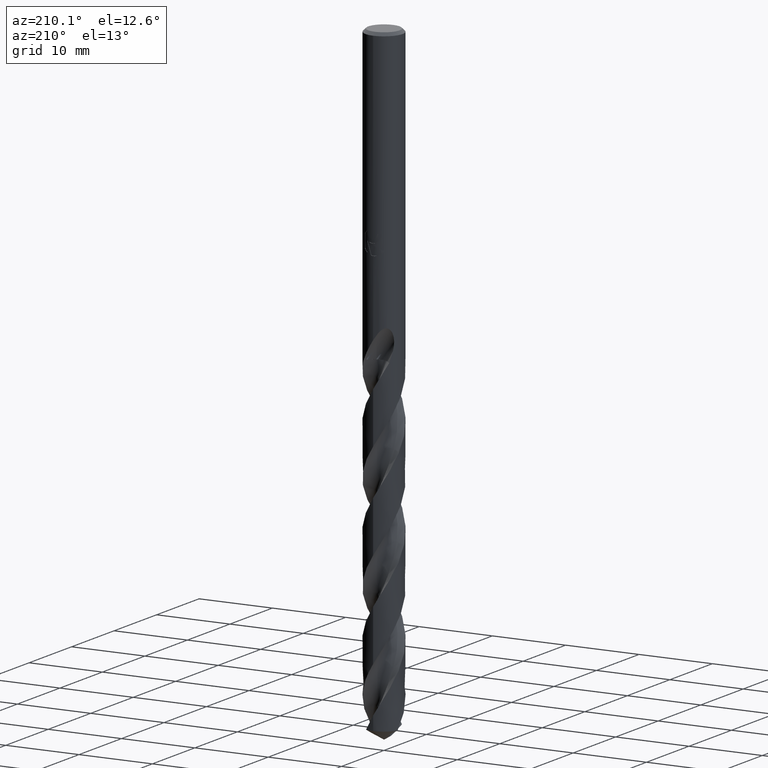
[diagram: clean part render]
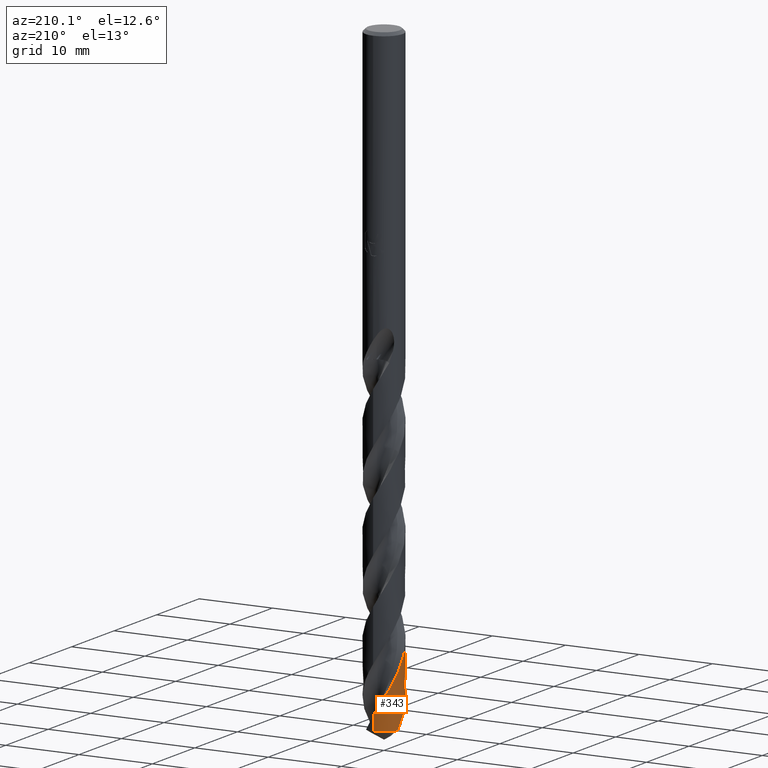
[diagram: same view with one face highlighted and labeled with its STEP entity id]
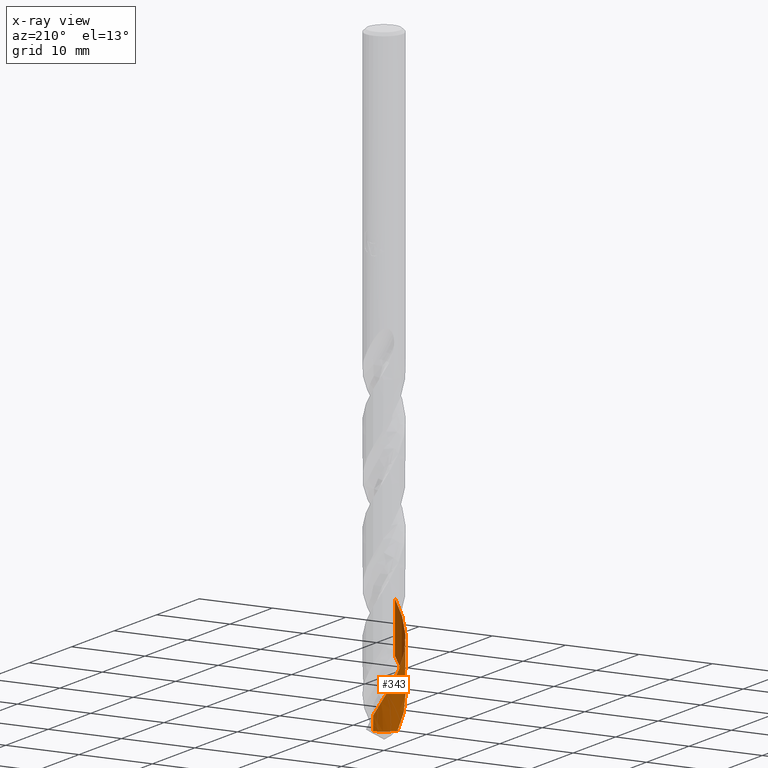
[diagram: x-ray of the same camera — body ghosted, the highlighted face saturated]
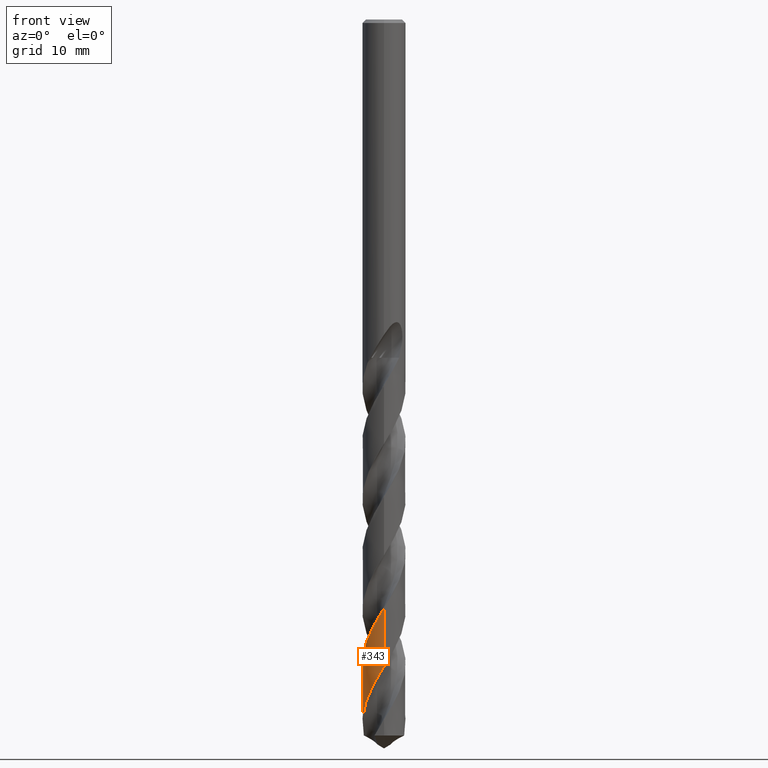
[diagram: same view with one face highlighted and labeled with its STEP entity id]
A machine part, auxiliary view. The second image highlights one B-rep face of the part: STEP entity #343.
The next image is the same camera in x-ray: the body ghosted, the highlighted face saturated — about 0% of this face is hidden behind the body in this view.
A second angle (front view) of the same face is appended — the face is thin or edge-on in the first view.
In plain terms, the highlighted conical surface has half-angle 0 deg.
Its self-contained STEP definition (entity closure, byte-faithful):
#315=EDGE_CURVE('',#707,#461,#820,.T.);
#343=ADVANCED_FACE('',(#849),#850,.T.);
#379=VERTEX_POINT('',#889);
#451=VERTEX_POINT('',#967);
#461=VERTEX_POINT('',#978);
#671=EDGE_CURVE('',#379,#731,#1205,.T.);
#687=EDGE_CURVE('',#451,#731,#1222,.T.);
#707=VERTEX_POINT('',#1244);
#723=EDGE_CURVE('',#461,#451,#1261,.T.);
#731=VERTEX_POINT('',#1271);
#741=EDGE_CURVE('',#379,#707,#1282,.T.);
#820=LINE('',#1700,#1701);
#849=FACE_OUTER_BOUND('',#1744,.T.);
#850=CONICAL_SURFACE('',#1745,2.54995,2.24377213673275E-006);
#889=CARTESIAN_POINT('',(-2.37960457100722,0.916505365855298,-84.4678054214797));
#967=CARTESIAN_POINT('',(-1.32567904475068E-014,2.54999575088543,-82.5740683088694));
#978=CARTESIAN_POINT('',(-1.49501950182934E-013,-2.54996624901896,-69.4257338613222));
#1205=CIRCLE('',#6736,2.55);
#1222=LINE('',#6771,#6772);
#1244=CARTESIAN_POINT('',(-1.56090524611372E-014,-2.54998179692435,-76.3550940838159));
#1261=B_SPLINE_CURVE_WITH_KNOTS('',3,(#7070,#7071,#7072,#7073,#7074,#7075,#7076,#7077,#7078,#7079,#7080,#7081,#7082,#7083,#7084,#7085,#7086,#7087,#7088,#7089,#7090,#7091,#7092,#7093,#7094,#7095,#7096,#7097,#7098,#7099,#7100,#7101,#7102,#7103,#7104,#7105,#7106,#7107,#7108,#7109,#7110,#7111,#7112,#7113,#7114,#7115,#7116,#7117,#7118,#7119,#7120,#7121,#7122,#7123,#7124,#7125,#7126,#7127,#7128,#7129,#7130,#7131,#7132,#7133,#7134,#7135,#7136,#7137,#7138,#7139,#7140,#7141,#7142,#7143,#7144,#7145,#7146,#7147,#7148,#7149,#7150,#7151,#7152,#7153,#7154,#7155,#7156,#7157,#7158,#7159,#7160,#7161,#7162,#7163,#7164,#7165,#7166,#7167,#7168,#7169,#7170,#7171,#7172,#7173,#7174,#7175,#7176,#7177,#7178,#7179,#7180,#7181,#7182,#7183,#7184,#7185,#7186,#7187,#7188,#7189,#7190,#7191,#7192,#7193,#7194,#7195,#7196,#7197,#7198,#7199,#7200,#7201,#7202,#7203,#7204,#7205,#7206,#7207,#7208,#7209,#7210,#7211,#7212,#7213,#7214,#7215,#7216,#7217,#7218,#7219,#7220,#7221,#7222,#7223,#7224,#7225,#7226,#7227,#7228,#7229,#7230,#7231,#7232,#7233,#7234,#7235,#7236,#7237,#7238,#7239),.UNSPECIFIED.,.F.,.F.,(4,2,2,2,2,2,2,2,2,2,2,2,2,2,2,2,2,2,2,2,2,2,2,2,2,2,2,2,2,2,2,2,2,2,2,2,2,2,2,2,2,2,2,2,2,2,2,2,2,2,2,2,2,2,2,2,2,2,2,2,2,2,2,2,2,2,2,2,2,2,2,2,2,2,2,2,2,2,2,2,2,2,2,2,4),(0.0,0.128900386987991,0.20967630578428,0.21992732343654,0.225768006113168,0.229305343989973,0.232364382032926,0.235037509973378,0.237393930060506,0.23948666682708,0.241357144120268,0.243038265610635,0.244556551112074,0.24593365226177,0.55374256996841,0.626201742849981,0.665840082232811,0.699099030225152,0.738496657827333,0.809884669127655,0.907788866245518,1.30256750466292,1.5553789310035,2.05098083731949,3.17018946927227,3.59520624601813,4.31916844540841,4.76597512397341,5.22559849243765,6.26727372694155,6.79048813979379,7.60910388949107,8.05470271713165,8.4762940207203,9.28669186697341,10.1727930656431,11.1611207464011,11.7231641681907,12.5636114616016,13.4501376446234,14.4213351820801,15.012439303883,15.8582062431566,16.7436318268271,17.7358221114925,18.2914743261619,19.1325465782396,20.0185723876188,20.9918102270958,21.5782730145203,22.4226633553582,23.3079251257136,24.2966955463813,24.8570078079192,25.6981892475908,26.5837998494538,27.5579945472971,28.1418159260104,28.9851457038656,29.8701855432672,30.8565232751138,31.4199732273003,32.2612077203801,33.1464124590319,34.1214476151114,34.7028619568227,35.5451872866778,36.4299945801775,37.4140671746624,37.9804240688221,38.821743259496,39.7065363885444,40.6824482913885,41.2614031455625,42.1029693010854,42.9875044277536,43.9689560100084,44.5384162118449,45.3816103298591,46.7217519657156,47.2280881200376,48.1052442620439,48.7713250494004,49.7752610207697,50.781615214081),.UNSPECIFIED.);
#1271=CARTESIAN_POINT('',(-3.12318034209098E-016,2.55,-84.4678054214797));
#1282=B_SPLINE_CURVE_WITH_KNOTS('',3,(#7717,#7718,#7719,#7720,#7721,#7722,#7723,#7724,#7725,#7726,#7727,#7728,#7729,#7730,#7731,#7732,#7733,#7734,#7735,#7736,#7737,#7738,#7739,#7740,#7741,#7742,#7743,#7744,#7745,#7746,#7747,#7748,#7749,#7750,#7751,#7752,#7753,#7754,#7755,#7756,#7757,#7758,#7759,#7760,#7761,#7762,#7763,#7764,#7765,#7766,#7767,#7768,#7769,#7770,#7771,#7772,#7773,#7774,#7775,#7776,#7777,#7778,#7779,#7780,#7781,#7782,#7783,#7784,#7785,#7786,#7787,#7788,#7789,#7790,#7791,#7792,#7793,#7794,#7795,#7796,#7797,#7798,#7799,#7800,#7801,#7802,#7803,#7804,#7805,#7806,#7807,#7808,#7809,#7810,#7811,#7812,#7813,#7814,#7815,#7816,#7817,#7818,#7819,#7820,#7821,#7822,#7823,#7824,#7825,#7826,#7827,#7828,#7829,#7830,#7831,#7832,#7833,#7834,#7835,#7836,#7837,#7838,#7839,#7840,#7841,#7842,#7843,#7844,#7845,#7846,#7847,#7848,#7849,#7850,#7851,#7852,#7853,#7854,#7855,#7856,#7857,#7858,#7859,#7860,#7861,#7862,#7863,#7864,#7865,#7866,#7867,#7868,#7869,#7870),.UNSPECIFIED.,.F.,.F.,(4,2,2,2,2,2,2,2,2,2,2,2,2,2,2,2,2,2,2,2,2,2,2,2,2,2,2,2,2,2,2,2,2,2,2,2,2,2,2,2,2,2,2,2,2,2,2,2,2,2,2,2,2,2,2,2,2,2,2,2,2,2,2,2,2,2,2,2,2,2,2,2,2,2,2,2,4),(0.0,0.834292465944842,1.25638309487284,2.08308224637403,2.98959708697629,3.74320339907064,4.64751621470474,5.43584932689863,6.27133897344682,7.09779209696413,7.93268775801577,8.76105195926973,9.59546810837225,9.8041601179118,10.1510961975384,11.1943345420575,12.0315193773504,12.8638982285907,13.7028138083229,14.5063760344859,15.3481922144197,16.0854108378525,16.5086308607437,17.2598352899261,18.0984208898496,18.9281372987025,19.7660669944202,20.5979130643119,21.4354010171846,21.6449303699471,21.9951559618864,23.0425399437801,23.8830620141366,24.7192421259865,25.5613876160799,26.3643426386489,27.2096332987351,27.94299131864,28.3679119240969,29.1354709008296,30.0469393310525,30.8380671325093,31.7493634876285,32.5361900967937,33.3776949418624,34.2100043172022,35.0509182177223,35.885244464979,36.7256797707534,37.5279740041885,38.4365123583583,38.8355255295947,38.9015358468379,40.0315556175699,40.8692866902674,41.7029428956447,42.5423243778315,43.3551247916249,44.1970338753261,44.9456627028539,45.3690215271047,46.0870821011954,46.7600283357998,47.0918706311924,47.5779400939023,48.9320566513438,49.0549836528162,50.3038515094555,50.9659576269275,51.4480363671986,51.6185177840979,51.732999617318,51.8235530792434,51.9250962171518,52.0953235773108,52.5420988582347,53.1669952212378),.UNSPECIFIED.);
#1700=CARTESIAN_POINT('',(3.12225083208546E-016,-2.54995,-62.1839027107399));
#1701=VECTOR('',#7964,1.0);
#1744=EDGE_LOOP('',(#7995,#7996,#7997,#7998,#7999));
#1745=AXIS2_PLACEMENT_3D('',#8000,#8001,#8002);
#6736=AXIS2_PLACEMENT_3D('',#8364,#8365,#8366);
#6771=CARTESIAN_POINT('',(-3.12311911177328E-016,2.54995,-62.1839027107399));
#6772=VECTOR('',#8377,1.0);
#7070=CARTESIAN_POINT('',(1.7723765108616,-1.83321345482734,-39.905));
#7071=CARTESIAN_POINT('',(1.75710082477025,-1.84798231920161,-39.9423454092098));
#7072=CARTESIAN_POINT('',(1.74158352363118,-1.86261607827862,-39.9797468884476));
#7073=CARTESIAN_POINT('',(1.71587524961426,-1.88625150492224,-40.0405273374739));
#7074=CARTESIAN_POINT('',(1.70587498546255,-1.89530114080435,-40.0638915288743));
#7075=CARTESIAN_POINT('',(1.69445917747488,-1.90546667401068,-40.0902150378718));
#7076=CARTESIAN_POINT('',(1.69317173259655,-1.90661078211573,-40.0931788344007));
#7077=CARTESIAN_POINT('',(1.69114771744556,-1.90840578381165,-40.0978305104924));
#7078=CARTESIAN_POINT('',(1.69041246546757,-1.90905708533911,-40.0995186945893));
#7079=CARTESIAN_POINT('',(1.68923091373494,-1.91010250988461,-40.1022290248047));
#7080=CARTESIAN_POINT('',(1.6887850131223,-1.91049675990829,-40.1032512742087));
#7081=CARTESIAN_POINT('',(1.68795307707555,-1.91123181017049,-40.105157425428));
#7082=CARTESIAN_POINT('',(1.68756710106379,-1.91157262805347,-40.1060413402507));
#7083=CARTESIAN_POINT('',(1.6868435199964,-1.91221116203622,-40.1076975657484));
#7084=CARTESIAN_POINT('',(1.68650595679645,-1.9125088903901,-40.1084698853976));
#7085=CARTESIAN_POINT('',(1.68587057748733,-1.91306899131871,-40.1099229481956));
#7086=CARTESIAN_POINT('',(1.68557279142731,-1.91333137283057,-40.1106036981955));
#7087=CARTESIAN_POINT('',(1.68501034882254,-1.9138267119141,-40.1118889646419));
#7088=CARTESIAN_POINT('',(1.68474571438337,-1.91405967611236,-40.112493486309));
#7089=CARTESIAN_POINT('',(1.68424439840961,-1.91450081231912,-40.1136382803822));
#7090=CARTESIAN_POINT('',(1.68400773362968,-1.9147089891796,-40.1141785564258));
#7091=CARTESIAN_POINT('',(1.68355824019688,-1.91510422814854,-40.1152043772229));
#7092=CARTESIAN_POINT('',(1.68334542420753,-1.91529129408407,-40.1156899250974));
#7093=CARTESIAN_POINT('',(1.68294030673508,-1.91564727393433,-40.1166139598133));
#7094=CARTESIAN_POINT('',(1.68274801500311,-1.91581619087254,-40.1170524492422));
#7095=CARTESIAN_POINT('',(1.68238123149531,-1.91613829069509,-40.1178886285259));
#7096=CARTESIAN_POINT('',(1.6822067475621,-1.91629147578861,-40.1182863199993));
#7097=CARTESIAN_POINT('',(1.64302384458453,-1.95068193756656,-40.2075733928143));
#7098=CARTESIAN_POINT('',(1.60323516825499,-1.98355879728478,-40.2936515567331));
#7099=CARTESIAN_POINT('',(1.55086329341618,-2.02409931981489,-40.4016380699407));
#7100=CARTESIAN_POINT('',(1.54080156604488,-2.03176962800894,-40.4221640167649));
#7101=CARTESIAN_POINT('',(1.52508711383368,-2.04356402256988,-40.4539142188457));
#7102=CARTESIAN_POINT('',(1.51950629569761,-2.04771717809659,-40.4651311284246));
#7103=CARTESIAN_POINT('',(1.50919528875348,-2.05532490656488,-40.4857549433353));
#7104=CARTESIAN_POINT('',(1.50447477134548,-2.05878284358259,-40.4951585799632));
#7105=CARTESIAN_POINT('',(1.49412533668527,-2.06630943565964,-40.5156980250107));
#7106=CARTESIAN_POINT('',(1.48849218610247,-2.07037110656166,-40.5268279873114));
#7107=CARTESIAN_POINT('',(1.47258962472397,-2.08173869663693,-40.5581229148924));
#7108=CARTESIAN_POINT('',(1.46228099877857,-2.08899286646787,-40.5782635187398));
#7109=CARTESIAN_POINT('',(1.43768805664422,-2.10602723032716,-40.626044427475));
#7110=CARTESIAN_POINT('',(1.42354621187945,-2.1156154270374,-40.6533399559551));
#7111=CARTESIAN_POINT('',(1.34924007547565,-2.1648681366609,-40.7965060617508));
#7112=CARTESIAN_POINT('',(1.28845425677429,-2.20155624136726,-40.912116537915));
#7113=CARTESIAN_POINT('',(1.18714624660139,-2.25714924592668,-41.101432871003));
#7114=CARTESIAN_POINT('',(1.1470825072851,-2.27776863997138,-41.1754794640171));
#7115=CARTESIAN_POINT('',(1.02710383164237,-2.33556026661959,-41.394542852955));
#7116=CARTESIAN_POINT('',(0.945690544490126,-2.36969664358563,-41.5396827585189));
#7117=CARTESIAN_POINT('',(0.675173260912042,-2.46695205670559,-42.0123670263283));
#7118=CARTESIAN_POINT('',(0.480342664384172,-2.51218965766981,-42.3373527989048));
#7119=CARTESIAN_POINT('',(0.206745375604498,-2.5426403729319,-42.7889614087387));
#7120=CARTESIAN_POINT('',(0.131164185705668,-2.54765461173531,-42.9132838512705));
#7121=CARTESIAN_POINT('',(-0.0733091220064718,-2.55210911734911,-43.2494414490737));
#7122=CARTESIAN_POINT('',(-0.202234670452391,-2.5451461810504,-43.4610984189842));
#7123=CARTESIAN_POINT('',(-0.409069986782036,-2.51814087715566,-43.8035354633626));
#7124=CARTESIAN_POINT('',(-0.487512175021329,-2.50413972770517,-43.9341038960194));
#7125=CARTESIAN_POINT('',(-0.645122369429844,-2.46831388829449,-44.1991392286946));
#7126=CARTESIAN_POINT('',(-0.724088629476137,-2.44631259228666,-44.3333739090546));
#7127=CARTESIAN_POINT('',(-0.978058105126237,-2.36218285568149,-44.7725026376269));
#7128=CARTESIAN_POINT('',(-1.14741968690286,-2.28472470427998,-45.0764975542085));
#7129=CARTESIAN_POINT('',(-1.38698559637937,-2.14173451395826,-45.534180689148));
#7130=CARTESIAN_POINT('',(-1.46436919774451,-2.08958592446112,-45.6869920329816));
#7131=CARTESIAN_POINT('',(-1.65501111716848,-1.9453205761992,-46.0795644611539));
#7132=CARTESIAN_POINT('',(-1.76358047505499,-1.8474683663523,-46.3188496291803));
#7133=CARTESIAN_POINT('',(-1.91742631067032,-1.68281098131569,-46.6886815230815));
#7134=CARTESIAN_POINT('',(-1.96892298019276,-1.62225949427439,-46.8189273971239));
#7135=CARTESIAN_POINT('',(-2.06349576850226,-1.49990320125221,-47.0725701309381));
#7136=CARTESIAN_POINT('',(-2.10680076827669,-1.43843959327312,-47.1957753567404));
#7137=CARTESIAN_POINT('',(-2.22520289597479,-1.25355728389242,-47.5562472055907));
#7138=CARTESIAN_POINT('',(-2.29263342092995,-1.12551594428172,-47.7931314313333));
#7139=CARTESIAN_POINT('',(-2.41034893002535,-0.846911959928071,-48.2894689701446));
#7140=CARTESIAN_POINT('',(-2.4581611133315,-0.696035893364212,-48.547792494419));
#7141=CARTESIAN_POINT('',(-2.52912609052006,-0.369640701956398,-49.0963079494819));
#7142=CARTESIAN_POINT('',(-2.54862895731607,-0.19405382422193,-49.3849144637172));
#7143=CARTESIAN_POINT('',(-2.55055979165511,0.0824366011692428,-49.838487814748));
#7144=CARTESIAN_POINT('',(-2.54534925757027,0.182590240892756,-50.0026340563284));
#7145=CARTESIAN_POINT('',(-2.5176881783416,0.431043480695088,-50.4130613763836));
#7146=CARTESIAN_POINT('',(-2.48801947710586,0.578214091002894,-50.6587719462619));
#7147=CARTESIAN_POINT('',(-2.40083364087509,0.873559566201718,-51.1641223752606));
#7148=CARTESIAN_POINT('',(-2.3420890179144,1.02064124253193,-51.4226068470837));
#7149=CARTESIAN_POINT('',(-2.191290337283,1.31542366796864,-51.9663349472997));
#7150=CARTESIAN_POINT('',(-2.09693325210468,1.4611682891515,-52.2500329777676));
#7151=CARTESIAN_POINT('',(-1.92248445436933,1.67848355525385,-52.7071909297569));
#7152=CARTESIAN_POINT('',(-1.85146754250798,1.75650548276904,-52.8798335754548));
#7153=CARTESIAN_POINT('',(-1.66764007630604,1.93490434975335,-53.3004064969945));
#7154=CARTESIAN_POINT('',(-1.55030857457487,2.03013375367526,-53.5477129199103));
#7155=CARTESIAN_POINT('',(-1.29428141207961,2.20270857131665,-54.0543952527846));
#7156=CARTESIAN_POINT('',(-1.15545606251289,2.27859408548916,-54.3126183457998));
#7157=CARTESIAN_POINT('',(-0.848141798253879,2.41124494886801,-54.8622775049768));
#7158=CARTESIAN_POINT('',(-0.678823591365467,2.46428467657303,-55.1521142337289));
#7159=CARTESIAN_POINT('',(-0.408145494078217,2.51901068323785,-55.6051218895488));
#7160=CARTESIAN_POINT('',(-0.309946765083443,2.53296696910963,-55.7674701538276));
#7161=CARTESIAN_POINT('',(-0.0617455210719697,2.55359678177217,-56.1763685614532));
#7162=CARTESIAN_POINT('',(0.0885547861546258,2.55281170205884,-56.4223554536664));
#7163=CARTESIAN_POINT('',(0.395299524749975,2.52406501246893,-56.9279372326425));
#7164=CARTESIAN_POINT('',(0.550909138556124,2.49472361348539,-57.1863765248693));
#7165=CARTESIAN_POINT('',(0.869588758176528,2.40335675178405,-57.7307659209953));
#7166=CARTESIAN_POINT('',(1.03115441318774,2.33860608590747,-58.0151642743637));
#7167=CARTESIAN_POINT('',(1.27759837281731,2.20927513870773,-58.4717367438027));
#7168=CARTESIAN_POINT('',(1.36715104014753,2.15500404747794,-58.6430937392474));
#7169=CARTESIAN_POINT('',(1.57685161477215,2.00958380263537,-59.0620669406941));
#7170=CARTESIAN_POINT('',(1.69278632678414,1.91295158514183,-59.3090679565434));
#7171=CARTESIAN_POINT('',(1.91143277853596,1.69516673764488,-59.8154957257397));
#7172=CARTESIAN_POINT('',(2.01271058272752,1.57357622339737,-60.0737694394029));
#7173=CARTESIAN_POINT('',(2.20189747707507,1.29806366471162,-60.6225912937178));
#7174=CARTESIAN_POINT('',(2.28641045681245,1.14267321510647,-60.9115480528191));
#7175=CARTESIAN_POINT('',(2.39264197948695,0.887412603739937,-61.3650949234713));
#7176=CARTESIAN_POINT('',(2.42558904485392,0.792934762171267,-61.5288640560547));
#7177=CARTESIAN_POINT('',(2.49390524205833,0.552444616685261,-61.9393173859064));
#7178=CARTESIAN_POINT('',(2.52209691626573,0.404729726830931,-62.1854306780062));
#7179=CARTESIAN_POINT('',(2.55295901417828,0.0981239486589649,-62.691118077808));
#7180=CARTESIAN_POINT('',(2.55413066802431,-0.0602112166509425,-62.9495367096435));
#7181=CARTESIAN_POINT('',(2.52582156792957,-0.390746079832253,-63.4942952869755));
#7182=CARTESIAN_POINT('',(2.49332622881888,-0.561988665128127,-63.7790801689104));
#7183=CARTESIAN_POINT('',(2.41385284511387,-0.828519616039767,-64.2353353181151));
#7184=CARTESIAN_POINT('',(2.37798817624963,-0.926440922206008,-64.4059884235825));
#7185=CARTESIAN_POINT('',(2.27594856368678,-1.15972970206261,-64.8240390305586));
#7186=CARTESIAN_POINT('',(2.2035532172408,-1.29200973133359,-65.0708263170426));
#7187=CARTESIAN_POINT('',(2.03210652040535,-1.54847715449886,-65.577074583355));
#7188=CARTESIAN_POINT('',(1.93232564370472,-1.6713278042697,-65.8353823990883));
#7189=CARTESIAN_POINT('',(1.69872519490256,-1.90986698463835,-66.3836384707677));
#7190=CARTESIAN_POINT('',(1.56286515562779,-2.02256380117913,-66.6720006854644));
#7191=CARTESIAN_POINT('',(1.33276512232081,-2.17627204536872,-67.1259300379328));
#7192=CARTESIAN_POINT('',(1.24590366579165,-2.22713669099492,-67.2906771733598));
#7193=CARTESIAN_POINT('',(1.022484667274,-2.34080539732459,-67.7022240730222));
#7194=CARTESIAN_POINT('',(0.882901903107088,-2.39694591304948,-67.9484474733904));
#7195=CARTESIAN_POINT('',(0.587922422222987,-2.48628998791116,-68.4542268008863));
#7196=CARTESIAN_POINT('',(0.432786968886527,-2.51792908775027,-68.7126273758051));
#7197=CARTESIAN_POINT('',(0.102781489923633,-2.55382748191599,-69.2577239112845));
#7198=CARTESIAN_POINT('',(-0.0717336789523074,-2.55489789103964,-69.5428617765457));
#7199=CARTESIAN_POINT('',(-0.348404223745501,-2.52818707011038,-69.9988338604354));
#7200=CARTESIAN_POINT('',(-0.451013940276474,-2.5119100474102,-70.1688508155699));
#7201=CARTESIAN_POINT('',(-0.699101078427658,-2.4568683934483,-70.5860631592201));
#7202=CARTESIAN_POINT('',(-0.842743965650211,-2.41137889236187,-70.8326528309078));
#7203=CARTESIAN_POINT('',(-1.12737628057234,-2.29266949393512,-71.3387346465126));
#7204=CARTESIAN_POINT('',(-1.26718606554805,-2.21845236464384,-71.5970735158432));
#7205=CARTESIAN_POINT('',(-1.54604316533475,-2.03542569985639,-72.1448092622576));
#7206=CARTESIAN_POINT('',(-1.68259030573356,-1.92409702050047,-72.4326249808631));
#7207=CARTESIAN_POINT('',(-1.87803191737219,-1.72788818838572,-72.8869184519365));
#7208=CARTESIAN_POINT('',(-1.94507248823434,-1.65205487498738,-73.0525769836484));
#7209=CARTESIAN_POINT('',(-2.10004176659366,-1.4542205763154,-73.4651598658167));
#7210=CARTESIAN_POINT('',(-2.18205536571952,-1.32800152598949,-73.7115026237551));
#7211=CARTESIAN_POINT('',(-2.32655738839742,-1.05569110292116,-74.2173814223632));
#7212=CARTESIAN_POINT('',(-2.38747351097689,-0.909562496081145,-74.4757622240913));
#7213=CARTESIAN_POINT('',(-2.48631323781466,-0.592443640489736,-75.0212058536119));
#7214=CARTESIAN_POINT('',(-2.52099295837801,-0.421174401805146,-75.3067074478349));
#7215=CARTESIAN_POINT('',(-2.54797163506505,-0.144704050154475,-75.7623914100018));
#7216=CARTESIAN_POINT('',(-2.55174157588623,-0.0412795957495613,-75.9317563998873));
#7217=CARTESIAN_POINT('',(-2.54556879614618,0.21229003569986,-76.3481862409252));
#7218=CARTESIAN_POINT('',(-2.52863869139657,0.361931945849279,-76.5946495477841));
#7219=CARTESIAN_POINT('',(-2.46706603715244,0.664052645593305,-77.1006248671127));
#7220=CARTESIAN_POINT('',(-2.42120164170189,0.815563698485999,-77.3589835065114));
#7221=CARTESIAN_POINT('',(-2.29553376956565,1.12412535691327,-77.9060826595874));
#7222=CARTESIAN_POINT('',(-2.21285385772182,1.27924306793538,-78.1932477733082));
#7223=CARTESIAN_POINT('',(-2.058018404608,1.50908852606473,-78.6478586095714));
#7224=CARTESIAN_POINT('',(-1.99618543864209,1.58997558664126,-78.8144860706245));
#7225=CARTESIAN_POINT('',(-1.83126168777988,1.78089806487895,-79.2286879834486));
#7226=CARTESIAN_POINT('',(-1.72289589665293,1.88593949706354,-79.4756727488403));
#7227=CARTESIAN_POINT('',(-1.41988135987607,2.13159960151543,-80.1157996112106));
#7228=CARTESIAN_POINT('',(-1.21360266103721,2.25541759742755,-80.5066780098789));
#7229=CARTESIAN_POINT('',(-0.909870142343394,2.38385709998802,-81.048118936402));
#7230=CARTESIAN_POINT('',(-0.824740206005863,2.41463337203672,-81.1964606035031));
#7231=CARTESIAN_POINT('',(-0.588078208897489,2.48620282115151,-81.602040468758));
#7232=CARTESIAN_POINT('',(-0.434233219538231,2.51762616104461,-81.8585312533857));
#7233=CARTESIAN_POINT('',(-0.160330622686705,2.54772724995433,-82.3111085335573));
#7234=CARTESIAN_POINT('',(-0.0413054956834088,2.5524372230186,-82.5062355325549));
#7235=CARTESIAN_POINT('',(0.256951822951518,2.54335145986691,-82.9958721263017));
#7236=CARTESIAN_POINT('',(0.435144570879641,2.5189857335835,-83.2892732586982));
#7237=CARTESIAN_POINT('',(0.783804941906852,2.43319780684987,-83.8787582798587));
#7238=CARTESIAN_POINT('',(0.953377367060152,2.37190302474305,-84.1728062861796));
#7239=CARTESIAN_POINT('',(1.11514291587317,2.29324143455893,-84.4678054214797));
#7717=CARTESIAN_POINT('',(-2.37960457100721,0.916505365855326,-84.4678054214797));
#7718=CARTESIAN_POINT('',(-2.43140772930122,0.782002723927466,-84.2299742096978));
#7719=CARTESIAN_POINT('',(-2.47183770125194,0.643036830004052,-83.9935396582022));
#7720=CARTESIAN_POINT('',(-2.51469598197902,0.429145137344715,-83.6361484460515));
#7721=CARTESIAN_POINT('',(-2.5259817050302,0.356740750583911,-83.5162332125877));
#7722=CARTESIAN_POINT('',(-2.5501006698373,0.141515993260234,-83.1608521053776));
#7723=CARTESIAN_POINT('',(-2.5540309316053,-0.00205692232151544,-82.9247450101531));
#7724=CARTESIAN_POINT('',(-2.53688119347444,-0.302448904550888,-82.4315086105697));
#7725=CARTESIAN_POINT('',(-2.51339174523439,-0.458288774913505,-82.1750748044243));
#7726=CARTESIAN_POINT('',(-2.4444543313768,-0.737683249302206,-81.7024493879744));
#7727=CARTESIAN_POINT('',(-2.40345515582345,-0.861966740147555,-81.4869869732023));
#7728=CARTESIAN_POINT('',(-2.29253205779087,-1.1275662221684,-81.0148747157063));
#7729=CARTESIAN_POINT('',(-2.21879633333503,-1.26649602725128,-80.7589518463168));
#7730=CARTESIAN_POINT('',(-2.05784290303142,-1.51209729889275,-80.276900416659));
#7731=CARTESIAN_POINT('',(-1.97381013592102,-1.62026719904835,-80.0514575471168));
#7732=CARTESIAN_POINT('',(-1.78345714682891,-1.82832626748396,-79.5889528328439));
#7733=CARTESIAN_POINT('',(-1.67658059605544,-1.92679964484945,-79.35226179377));
#7734=CARTESIAN_POINT('',(-1.44851864011546,-2.10352444122569,-78.8789081187256));
#7735=CARTESIAN_POINT('',(-1.32798395087608,-2.18162426999548,-78.6425510293937));
#7736=CARTESIAN_POINT('',(-1.07353862040421,-2.3175327644418,-78.1693602946126));
#7737=CARTESIAN_POINT('',(-0.940088741676264,-2.374799246304,-77.9328451889191));
#7738=CARTESIAN_POINT('',(-0.66597794971576,-2.46568018290841,-77.4591727684117));
#7739=CARTESIAN_POINT('',(-0.526012127483749,-2.49928049015294,-77.2222919215253));
#7740=CARTESIAN_POINT('',(-0.240676910846621,-2.54272769478653,-76.7487533114561));
#7741=CARTESIAN_POINT('',(-0.0958858261827271,-2.55229341759889,-76.5124072629767));
#7742=CARTESIAN_POINT('',(0.085181396859728,-2.5488158973282,-76.2154144703489));
#7743=CARTESIAN_POINT('',(0.121359168147529,-2.54734870560309,-76.1559996891865));
#7744=CARTESIAN_POINT('',(0.217487262970241,-2.5414009686678,-75.9977076923159));
#7745=CARTESIAN_POINT('',(0.27726217032373,-2.53557271251221,-75.8986655803681));
#7746=CARTESIAN_POINT('',(0.515621363088516,-2.50381622770579,-75.5029378670362));
#7747=CARTESIAN_POINT('',(0.691672874040639,-2.46104112489925,-75.2084787341903));
#7748=CARTESIAN_POINT('',(0.998623159878529,-2.35079226017254,-74.6739546187143));
#7749=CARTESIAN_POINT('',(1.13065644091388,-2.29019606054188,-74.4350402399122));
#7750=CARTESIAN_POINT('',(1.38209705192153,-2.1477765044364,-73.9604567811317));
#7751=CARTESIAN_POINT('',(1.50129548782478,-2.06623003745097,-73.7251372300476));
#7752=CARTESIAN_POINT('',(1.72566751817567,-1.88297348424465,-73.2504129231432));
#7753=CARTESIAN_POINT('',(1.83006780191734,-1.78164683667631,-73.0112169790903));
#7754=CARTESIAN_POINT('',(2.01631218647489,-1.56721316076201,-72.5446894225056));
#7755=CARTESIAN_POINT('',(2.0987775760666,-1.45494711850899,-72.3176101057429));
#7756=CARTESIAN_POINT('',(2.24815695326865,-1.2121931624358,-71.8506532722398));
#7757=CARTESIAN_POINT('',(2.31368410013761,-1.08182608905234,-71.6109383305294));
#7758=CARTESIAN_POINT('',(2.41492591955813,-0.828664616267962,-71.1628698565706));
#7759=CARTESIAN_POINT('',(2.45333121262421,-0.706961455960928,-70.9545858868452));
#7760=CARTESIAN_POINT('',(2.49923229440662,-0.511415573419711,-70.6256454358715));
#7761=CARTESIAN_POINT('',(2.51287445614939,-0.439484114366885,-70.5058057983783));
#7762=CARTESIAN_POINT('',(2.5420812947641,-0.238737994736536,-70.1726443562664));
#7763=CARTESIAN_POINT('',(2.5509476894442,-0.10904057424236,-69.9586509246686));
#7764=CARTESIAN_POINT('',(2.54869061098896,0.16599047372028,-69.5075449061604));
#7765=CARTESIAN_POINT('',(2.53512247179186,0.310668472972726,-69.2708745191968));
#7766=CARTESIAN_POINT('',(2.48381939282525,0.594604124190368,-68.7975044775891));
#7767=CARTESIAN_POINT('',(2.44646324405261,0.733301865991905,-68.5611078298597));
#7768=CARTESIAN_POINT('',(2.34824859482005,1.00451327937153,-68.0879181877828));
#7769=CARTESIAN_POINT('',(2.2873745265934,1.13632458842256,-67.851441386389));
#7770=CARTESIAN_POINT('',(2.14440677427387,1.3872728819459,-67.3777209105618));
#7771=CARTESIAN_POINT('',(2.06281147777249,1.50592152240997,-67.1407483207216));
#7772=CARTESIAN_POINT('',(1.87975481230764,1.72910058829003,-66.6671506928877));
#7773=CARTESIAN_POINT('',(1.77854015394973,1.83304944650632,-66.4308368260499));
#7774=CARTESIAN_POINT('',(1.64162879339761,1.95157844789702,-66.1338702270808));
#7775=CARTESIAN_POINT('',(1.61374919635388,1.97469294555985,-66.0744451804682));
#7776=CARTESIAN_POINT('',(1.53804161687167,2.03479073978769,-65.9155877767699));
#7777=CARTESIAN_POINT('',(1.48942827765005,2.070635558397,-65.8159873201449));
#7778=CARTESIAN_POINT('',(1.2906604606007,2.20659178479918,-65.4196791897389));
#7779=CARTESIAN_POINT('',(1.13113082872816,2.29250288526995,-65.1251902909232));
#7780=CARTESIAN_POINT('',(0.82912996617792,2.41576191531661,-64.590614175186));
#7781=CARTESIAN_POINT('',(0.690415598664046,2.45898292040933,-64.351678075224));
#7782=CARTESIAN_POINT('',(0.408107184088606,2.5212095080214,-63.8769081495134));
#7783=CARTESIAN_POINT('',(0.26484870072122,2.5402681515288,-63.6414298274436));
#7784=CARTESIAN_POINT('',(-0.0246158798415365,2.55397616030313,-63.1665500461043));
#7785=CARTESIAN_POINT('',(-0.169988120937066,2.54841104764658,-62.9273578152456));
#7786=CARTESIAN_POINT('',(-0.451194360612676,2.51352349157777,-62.4618922693144));
#7787=CARTESIAN_POINT('',(-0.58694941711357,2.48534389283204,-62.2358527923237));
#7788=CARTESIAN_POINT('',(-0.859801156512636,2.40504851177881,-61.7698964071088));
#7789=CARTESIAN_POINT('',(-0.995757855037458,2.35198628326064,-61.5301376681953));
#7790=CARTESIAN_POINT('',(-1.23935325148625,2.23207183431493,-61.0839230844657));
#7791=CARTESIAN_POINT('',(-1.34835813191638,2.16798253132364,-60.8775215690524));
#7792=CARTESIAN_POINT('',(-1.51250952186304,2.05424165510475,-60.5504780675121));
#7793=CARTESIAN_POINT('',(-1.5708432369666,2.00998074207972,-60.430629217266));
#7794=CARTESIAN_POINT('',(-1.72883052740446,1.87904499948156,-60.0936798275632));
#7795=CARTESIAN_POINT('',(-1.82385313245934,1.78697291978014,-59.8758936367938));
#7796=CARTESIAN_POINT('',(-2.01536028535748,1.57009705150415,-59.4013679302052));
#7797=CARTESIAN_POINT('',(-2.10818256328495,1.44305336559249,-59.145348688213));
#7798=CARTESIAN_POINT('',(-2.25858828048639,1.19144309418332,-58.6640886631948));
#7799=CARTESIAN_POINT('',(-2.31900512833061,1.06911776663226,-58.4395367975334));
#7800=CARTESIAN_POINT('',(-2.42745491584597,0.796450161478253,-57.9582623597671));
#7801=CARTESIAN_POINT('',(-2.47187323418865,0.645496538909659,-57.7022192526797));
#7802=CARTESIAN_POINT('',(-2.52824001190864,0.358540754549084,-57.2220796219848));
#7803=CARTESIAN_POINT('',(-2.54372707504834,0.223701883725753,-56.9986790784526));
#7804=CARTESIAN_POINT('',(-2.55342824974076,-0.0568828020087583,-56.5382077706776));
#7805=CARTESIAN_POINT('',(-2.54605642420165,-0.202017750056871,-56.3015203076693));
#7806=CARTESIAN_POINT('',(-2.50694116838948,-0.48785018712009,-55.8281956657152));
#7807=CARTESIAN_POINT('',(-2.47555896239193,-0.62798413734654,-55.5918657347563));
#7808=CARTESIAN_POINT('',(-2.38903844763727,-0.903146715847183,-55.1187017218616));
#7809=CARTESIAN_POINT('',(-2.33384672483181,-1.03746474445191,-54.8821851765902));
#7810=CARTESIAN_POINT('',(-2.20175647872234,-1.29425990170498,-54.4085130649647));
#7811=CARTESIAN_POINT('',(-2.12534417405891,-1.41624124517341,-54.1716345674088));
#7812=CARTESIAN_POINT('',(-1.95202882143005,-1.64703037190866,-53.698095058949));
#7813=CARTESIAN_POINT('',(-1.85534224267133,-1.75523128923663,-53.4617465986134));
#7814=CARTESIAN_POINT('',(-1.64938956194393,-1.94955863112056,-52.9973747461369));
#7815=CARTESIAN_POINT('',(-1.54137919373886,-2.03601958379736,-52.7696447254517));
#7816=CARTESIAN_POINT('',(-1.29720610675224,-2.20087860558216,-52.2860284035697));
#7817=CARTESIAN_POINT('',(-1.15973676826343,-2.2763216531501,-52.0308279794105));
#7818=CARTESIAN_POINT('',(-0.953125880653272,-2.36609411793818,-51.6613504448159));
#7819=CARTESIAN_POINT('',(-0.889112263597945,-2.39087709488669,-51.5486696247971));
#7820=CARTESIAN_POINT('',(-0.813579569100593,-2.41667922097409,-51.4170838272897));
#7821=CARTESIAN_POINT('',(-0.802806941507968,-2.42027944542844,-51.3983620195317));
#7822=CARTESIAN_POINT('',(-0.606440370184901,-2.48444027456753,-51.0580342277742));
#7823=CARTESIAN_POINT('',(-0.414295424030074,-2.52365341556427,-50.7396419197624));
#7824=CARTESIAN_POINT('',(-0.0745334569185603,-2.55296511470199,-50.1807220531098));
#7825=CARTESIAN_POINT('',(0.0707218782321112,-2.55305636181437,-49.9418335119028));
#7826=CARTESIAN_POINT('',(0.358769049142059,-2.52867039624612,-49.4670937769782));
#7827=CARTESIAN_POINT('',(0.501243155586425,-2.50433658413085,-49.2315945654648));
#7828=CARTESIAN_POINT('',(0.781717302340393,-2.43149057438925,-48.7567311358106));
#7829=CARTESIAN_POINT('',(0.918861446181032,-2.38302736572767,-48.5175796127621));
#7830=CARTESIAN_POINT('',(1.17897314738246,-2.265354595858,-48.0486426444019));
#7831=CARTESIAN_POINT('',(1.30203394340452,-2.19694812585983,-47.8191423318667));
#7832=CARTESIAN_POINT('',(1.54000608062772,-2.03757022421936,-47.3498695302379));
#7833=CARTESIAN_POINT('',(1.65375154028576,-1.9463523523288,-47.1102577326184));
#7834=CARTESIAN_POINT('',(1.85247492626919,-1.75701298707762,-46.659238486491));
#7835=CARTESIAN_POINT('',(1.93920386451671,-1.66081966312463,-46.4479138735156));
#7836=CARTESIAN_POINT('',(2.0630934217521,-1.50035640885774,-46.1159218305104));
#7837=CARTESIAN_POINT('',(2.10527797712802,-1.44055643569392,-45.9961211298635));
#7838=CARTESIAN_POINT('',(2.2118176971035,-1.27486312644684,-45.6725162395203));
#7839=CARTESIAN_POINT('',(2.27119206908613,-1.16582477496064,-45.4680869155087));
#7840=CARTESIAN_POINT('',(2.37046578502336,-0.946822628791144,-45.0735781642648));
#7841=CARTESIAN_POINT('',(2.41120598521687,-0.837668403446442,-44.8833776377688));
#7842=CARTESIAN_POINT('',(2.46070490671234,-0.671022654096225,-44.5985236138937));
#7843=CARTESIAN_POINT('',(2.47517338436492,-0.615502295223063,-44.5044953971815));
#7844=CARTESIAN_POINT('',(2.5061687211941,-0.477706554171484,-44.2724548797521));
#7845=CARTESIAN_POINT('',(2.52052892252299,-0.39500365061378,-44.1341311347909));
#7846=CARTESIAN_POINT('',(2.55939197844704,-0.0793878200587539,-43.6119637475949));
#7847=CARTESIAN_POINT('',(2.55582137509959,0.155246756793625,-43.2333800125291));
#7848=CARTESIAN_POINT('',(2.51738642414727,0.40649280692293,-42.8138032897919));
#7849=CARTESIAN_POINT('',(2.51393607778334,0.42730933164441,-42.7789026365646));
#7850=CARTESIAN_POINT('',(2.47257277236559,0.659032519422343,-42.390046210406));
#7851=CARTESIAN_POINT('',(2.40852431218565,0.864589787674444,-42.043073181397));
#7852=CARTESIAN_POINT('',(2.27128510313959,1.16461995095613,-41.5053820358032));
#7853=CARTESIAN_POINT('',(2.21715718350379,1.26439495167058,-41.3212480482404));
#7854=CARTESIAN_POINT('',(2.11429788284557,1.42771145417183,-40.9967050312974));
#7855=CARTESIAN_POINT('',(2.06870319846282,1.49281787805046,-40.8597424662671));
#7856=CARTESIAN_POINT('',(2.00458769281349,1.57619225559342,-40.6716224674488));
#7857=CARTESIAN_POINT('',(1.9930109920292,1.59064432567252,-40.6376514008539));
#7858=CARTESIAN_POINT('',(1.97660794157255,1.61094036835833,-40.5908672330918));
#7859=CARTESIAN_POINT('',(1.96986597479254,1.61917963722344,-40.5721703887153));
#7860=CARTESIAN_POINT('',(1.95750360062921,1.63409000589703,-40.5388464797096));
#7861=CARTESIAN_POINT('',(1.95194559340199,1.64072615051452,-40.5241917650742));
#7862=CARTESIAN_POINT('',(1.93993873470771,1.65491117910807,-40.4932296583494));
#7863=CARTESIAN_POINT('',(1.9334661556346,1.66247011380087,-40.4769440488119));
#7864=CARTESIAN_POINT('',(1.91579328283132,1.68286002442108,-40.4335623921124));
#7865=CARTESIAN_POINT('',(1.90436620455788,1.69578757114157,-40.40662890559));
#7866=CARTESIAN_POINT('',(1.86157563405005,1.7431776942941,-40.3098013194779));
#7867=CARTESIAN_POINT('',(1.82813659914611,1.778342186647,-40.241543183951));
#7868=CARTESIAN_POINT('',(1.74128040815528,1.86413581288948,-40.0813386954166));
#7869=CARTESIAN_POINT('',(1.68577943540912,1.91478074133236,-39.9918476432236));
#7870=CARTESIAN_POINT('',(1.62486902012397,1.96514394756601,-39.905));
#7964=DIRECTION('',(-2.74773761517024E-022,2.24377213673087E-006,0.999999999997483));
#7995=ORIENTED_EDGE('',*,*,#687,.T.);
#7996=ORIENTED_EDGE('',*,*,#671,.F.);
#7997=ORIENTED_EDGE('',*,*,#741,.T.);
#7998=ORIENTED_EDGE('',*,*,#315,.T.);
#7999=ORIENTED_EDGE('',*,*,#723,.T.);
#8000=CARTESIAN_POINT('',(0.0,0.0,-62.1839027107399));
#8001=DIRECTION('',(0.0,-0.0,-1.0));
#8002=DIRECTION('',(0.0,1.0,0.0));
#8364=CARTESIAN_POINT('',(0.0,0.0,-84.4678054214797));
#8365=DIRECTION('',(0.0,0.0,-1.0));
#8366=DIRECTION('',(0.0,1.0,0.0));
#8377=DIRECTION('',(-2.74773761517024E-022,2.24377213673087E-006,-0.999999999997483));